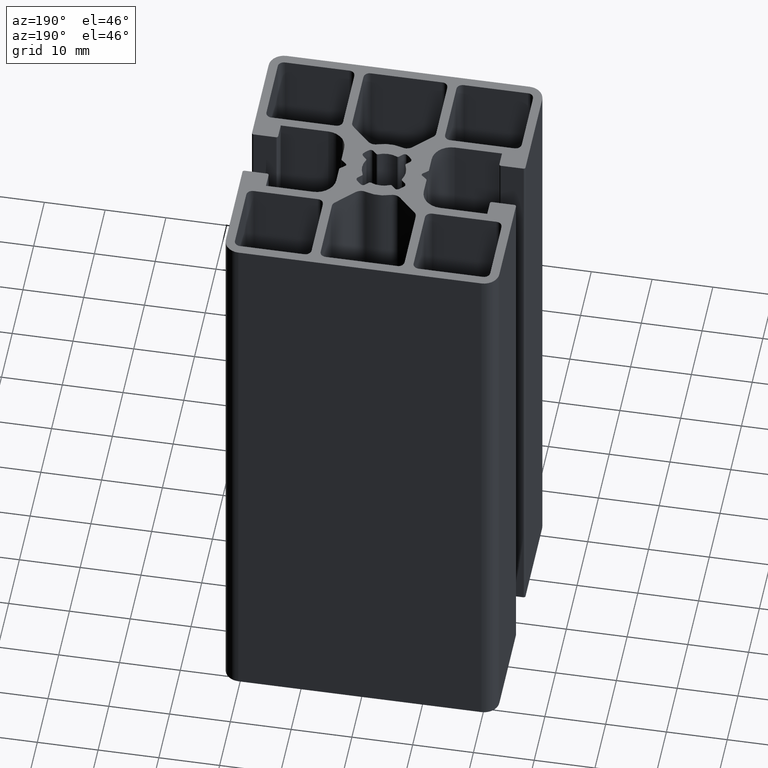
[diagram: clean part render]
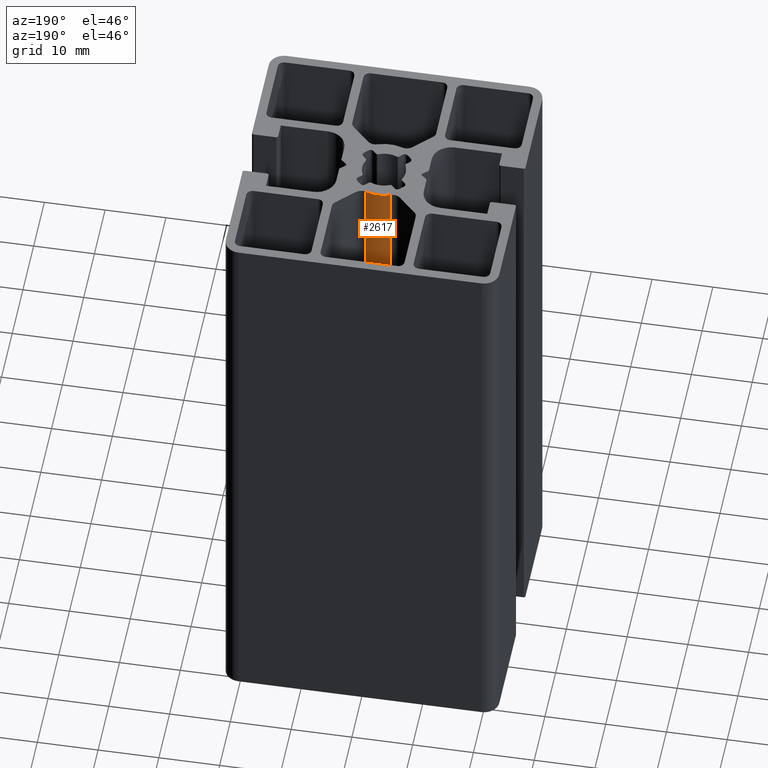
[diagram: same view with one face highlighted and labeled with its STEP entity id]
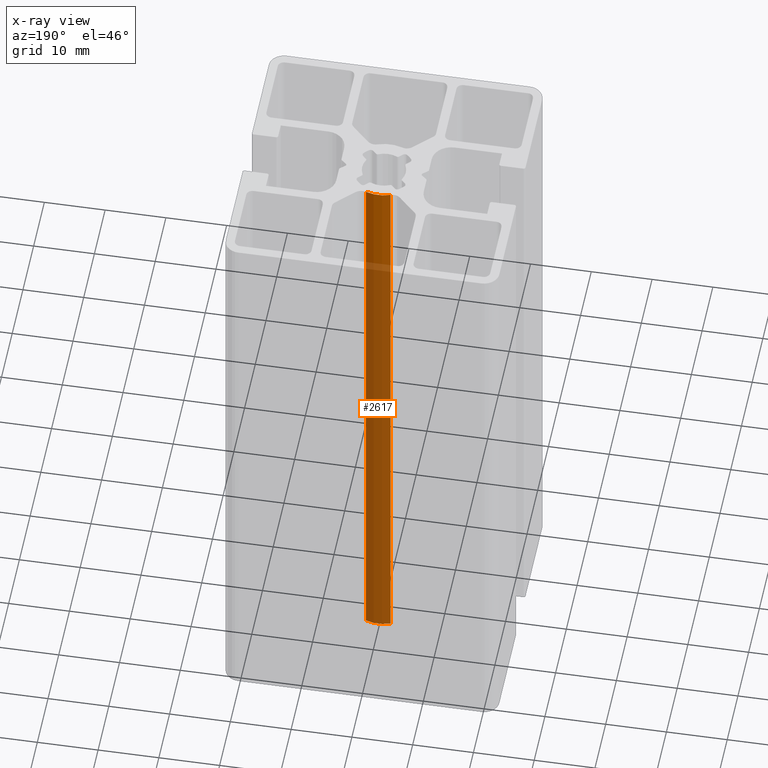
[diagram: x-ray of the same camera — body ghosted, the highlighted face saturated]
A machine part, auxiliary view. The second image highlights one B-rep face of the part: STEP entity #2617.
The next image is the same camera in x-ray: the body ghosted, the highlighted face saturated — about 84% of this face is hidden behind the body in this view.
In plain terms, the highlighted cylindrical surface (edge-blend (fillet) strip) has radius 5.8 mm, axis along (0, 0, 1).
Its self-contained STEP definition (entity closure, byte-faithful):
#91=FACE_OUTER_BOUND('',#229,.T.);
#229=EDGE_LOOP('',(#1725,#1726,#1727,#1728));
#381=LINE('',#3891,#637);
#382=LINE('',#3894,#638);
#637=VECTOR('',#3053,100.);
#638=VECTOR('',#3056,100.);
#893=CIRCLE('',#2758,5.80000000000001);
#894=CIRCLE('',#2759,5.80000000000001);
#1045=VERTEX_POINT('',#3887);
#1046=VERTEX_POINT('',#3888);
#1047=VERTEX_POINT('',#3890);
#1048=VERTEX_POINT('',#3892);
#1317=EDGE_CURVE('',#1045,#1046,#893,.T.);
#1318=EDGE_CURVE('',#1047,#1045,#381,.T.);
#1319=EDGE_CURVE('',#1048,#1047,#894,.T.);
#1320=EDGE_CURVE('',#1048,#1046,#382,.T.);
#1725=ORIENTED_EDGE('',*,*,#1317,.F.);
#1726=ORIENTED_EDGE('',*,*,#1318,.F.);
#1727=ORIENTED_EDGE('',*,*,#1319,.F.);
#1728=ORIENTED_EDGE('',*,*,#1320,.T.);
#2541=CYLINDRICAL_SURFACE('',#2757,5.80000000000001);
#2617=ADVANCED_FACE('',(#91),#2541,.T.);
#2757=AXIS2_PLACEMENT_3D('',#3886,#3049,#3050);
#2758=AXIS2_PLACEMENT_3D('',#3889,#3051,#3052);
#2759=AXIS2_PLACEMENT_3D('',#3893,#3054,#3055);
#3049=DIRECTION('center_axis',(0.,0.,1.));
#3050=DIRECTION('ref_axis',(-0.354044805860456,-0.935228461630222,0.));
#3051=DIRECTION('center_axis',(0.,0.,1.));
#3052=DIRECTION('ref_axis',(-0.354044805860456,-0.935228461630222,0.));
#3053=DIRECTION('',(0.,0.,1.));
#3054=DIRECTION('center_axis',(0.,0.,-1.));
#3055=DIRECTION('ref_axis',(-0.354044805860456,-0.935228461630222,0.));
#3056=DIRECTION('',(0.,0.,1.));
#3886=CARTESIAN_POINT('Origin',(-5.32907051820075E-15,-2.34617122849898E-15,
0.));
#3887=CARTESIAN_POINT('',(2.05345987399064,5.42432507745529,100.));
#3888=CARTESIAN_POINT('',(-2.05345987399066,5.42432507745529,100.));
#3889=CARTESIAN_POINT('Origin',(-5.32907051820075E-15,-2.34617122849898E-15,
100.));
#3890=CARTESIAN_POINT('',(2.05345987399064,5.42432507745529,0.));
#3891=CARTESIAN_POINT('',(2.05345987399064,5.42432507745529,0.));
#3892=CARTESIAN_POINT('',(-2.05345987399066,5.42432507745529,0.));
#3893=CARTESIAN_POINT('Origin',(-5.32907051820075E-15,-2.34617122849898E-15,
0.));
#3894=CARTESIAN_POINT('',(-2.05345987399066,5.42432507745529,0.));